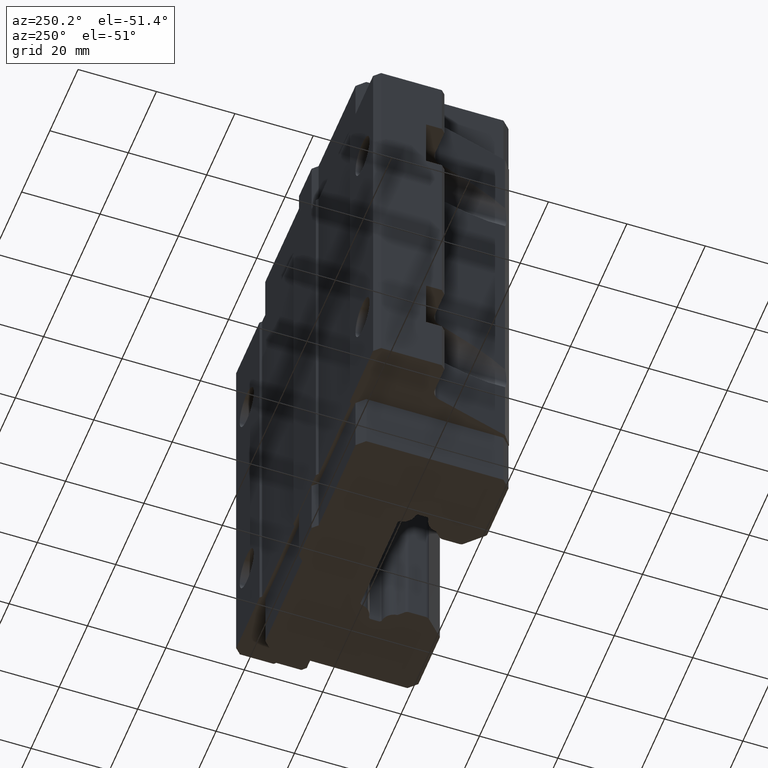
[diagram: clean part render]
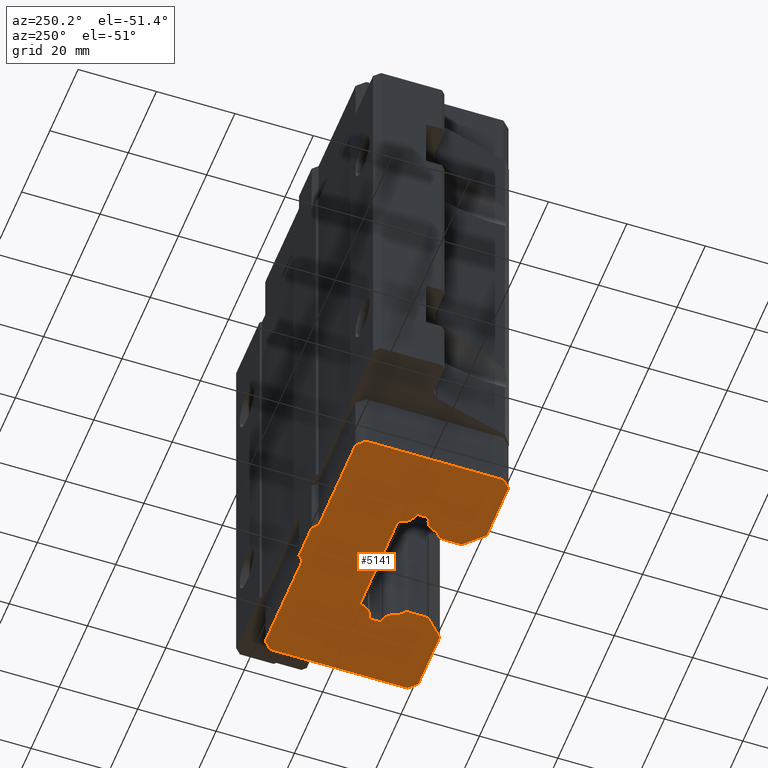
[diagram: same view with one face highlighted and labeled with its STEP entity id]
A machine part, auxiliary view. The second image highlights one B-rep face of the part: STEP entity #5141.
In plain terms, the highlighted planar face has unit normal (0, 0, 1).
Its self-contained STEP definition (entity closure, byte-faithful):
#320 = EDGE_CURVE ( 'NONE', #596, #598, #12018, .T. ) ;
#552 = VERTEX_POINT ( 'NONE', #12702 ) ;
#565 = EDGE_CURVE ( 'NONE', #552, #575, #12737, .T. ) ;
#575 = VERTEX_POINT ( 'NONE', #12768 ) ;
#596 = VERTEX_POINT ( 'NONE', #12884 ) ;
#598 = VERTEX_POINT ( 'NONE', #12883 ) ;
#692 = EDGE_CURVE ( 'NONE', #693, #698, #13094, .T. ) ;
#693 = VERTEX_POINT ( 'NONE', #13090 ) ;
#698 = VERTEX_POINT ( 'NONE', #13083 ) ;
#907 = VERTEX_POINT ( 'NONE', #13693 ) ;
#986 = EDGE_CURVE ( 'NONE', #5293, #907, #10647, .T. ) ;
#1277 = EDGE_CURVE ( 'NONE', #698, #5295, #5762, .T. ) ;
#1278 = VERTEX_POINT ( 'NONE', #5758 ) ;
#1305 = EDGE_CURVE ( 'NONE', #598, #552, #5807, .T. ) ;
#1318 = EDGE_CURVE ( 'NONE', #907, #596, #5859, .T. ) ;
#1327 = EDGE_CURVE ( 'NONE', #575, #1331, #5843, .T. ) ;
#1331 = VERTEX_POINT ( 'NONE', #5835 ) ;
#1345 = VERTEX_POINT ( 'NONE', #5882 ) ;
#1347 = EDGE_CURVE ( 'NONE', #1351, #1348, #5881, .T. ) ;
#1348 = VERTEX_POINT ( 'NONE', #5877 ) ;
#1351 = VERTEX_POINT ( 'NONE', #5875 ) ;
#1361 = EDGE_CURVE ( 'NONE', #1348, #1345, #5923, .T. ) ;
#1368 = EDGE_CURVE ( 'NONE', #1331, #1351, #5905, .T. ) ;
#1412 = ORIENTED_EDGE ( 'NONE', *, *, #1318, .F. ) ;
#1413 = ORIENTED_EDGE ( 'NONE', *, *, #14162, .F. ) ;
#1414 = ORIENTED_EDGE ( 'NONE', *, *, #5222, .F. ) ;
#1426 = ORIENTED_EDGE ( 'NONE', *, *, #14140, .F. ) ;
#1431 = ORIENTED_EDGE ( 'NONE', *, *, #14098, .F. ) ;
#1433 = ORIENTED_EDGE ( 'NONE', *, *, #5160, .F. ) ;
#1434 = ORIENTED_EDGE ( 'NONE', *, *, #2341, .F. ) ;
#1435 = ORIENTED_EDGE ( 'NONE', *, *, #5274, .F. ) ;
#1438 = ORIENTED_EDGE ( 'NONE', *, *, #2726, .F. ) ;
#1440 = ORIENTED_EDGE ( 'NONE', *, *, #14299, .F. ) ;
#1445 = ORIENTED_EDGE ( 'NONE', *, *, #14116, .F. ) ;
#1504 = VERTEX_POINT ( 'NONE', #6122 ) ;
#1507 = VERTEX_POINT ( 'NONE', #6112 ) ;
#1590 = ORIENTED_EDGE ( 'NONE', *, *, #14183, .F. ) ;
#1591 = EDGE_CURVE ( 'NONE', #1597, #13957, #6315, .T. ) ;
#1592 = ORIENTED_EDGE ( 'NONE', *, *, #1591, .F. ) ;
#1595 = ORIENTED_EDGE ( 'NONE', *, *, #692, .F. ) ;
#1596 = EDGE_CURVE ( 'NONE', #5096, #1597, #6375, .T. ) ;
#1597 = VERTEX_POINT ( 'NONE', #6371 ) ;
#1598 = ORIENTED_EDGE ( 'NONE', *, *, #5299, .F. ) ;
#1600 = ORIENTED_EDGE ( 'NONE', *, *, #986, .F. ) ;
#1607 = ORIENTED_EDGE ( 'NONE', *, *, #1277, .F. ) ;
#1608 = ORIENTED_EDGE ( 'NONE', *, *, #1596, .F. ) ;
#1617 = ORIENTED_EDGE ( 'NONE', *, *, #14186, .F. ) ;
#1618 = ORIENTED_EDGE ( 'NONE', *, *, #14027, .F. ) ;
#1620 = ORIENTED_EDGE ( 'NONE', *, *, #14034, .F. ) ;
#1621 = ORIENTED_EDGE ( 'NONE', *, *, #14005, .F. ) ;
#2283 = VERTEX_POINT ( 'NONE', #6739 ) ;
#2341 = EDGE_CURVE ( 'NONE', #2495, #2283, #6778, .T. ) ;
#2495 = VERTEX_POINT ( 'NONE', #6833 ) ;
#2726 = EDGE_CURVE ( 'NONE', #1504, #1507, #6860, .T. ) ;
#3545 = CARTESIAN_POINT ( 'NONE',  ( 13.62681920692313400, -0.3753978506824415800, -69.09999999999999400 ) ) ;
#3648 = CARTESIAN_POINT ( 'NONE',  ( -16.64140162820000100, -21.50000000000000000, -69.09999999999999400 ) ) ;
#3659 = DIRECTION ( 'NONE',  ( 0.7071067811865482400, -0.7071067811865469100, 0.0000000000000000000 ) ) ;
#3660 = VECTOR ( 'NONE', #3659, 999.9999999999998900 ) ;
#3661 = CARTESIAN_POINT ( 'NONE',  ( -34.04647986722999800, -19.45424285227000300, -69.09999999999999400 ) ) ;
#3662 = LINE ( 'NONE', #3661, #3660 ) ;
#3669 = CARTESIAN_POINT ( 'NONE',  ( -34.04647986722999800, -19.45424285227000300, -69.09999999999999400 ) ) ;
#3679 = CARTESIAN_POINT ( 'NONE',  ( -32.00072271949999700, -21.50000000000000000, -69.09999999999999400 ) ) ;
#3689 = DIRECTION ( 'NONE',  ( 1.000000000000000000, 0.0000000000000000000, 0.0000000000000000000 ) ) ;
#3690 = VECTOR ( 'NONE', #3689, 1000.000000000000000 ) ;
#3691 = CARTESIAN_POINT ( 'NONE',  ( 0.0000000000000000000, -21.50000000000000000, -69.09999999999999400 ) ) ;
#3692 = LINE ( 'NONE', #3691, #3690 ) ;
#3727 = CARTESIAN_POINT ( 'NONE',  ( 31.95352013277000200, 17.54575714773000100, -69.09999999999999400 ) ) ;
#3728 = DIRECTION ( 'NONE',  ( -0.7071067811865479100, 0.7071067811865472400, 0.0000000000000000000 ) ) ;
#3729 = VECTOR ( 'NONE', #3728, 999.9999999999998900 ) ;
#3730 = CARTESIAN_POINT ( 'NONE',  ( 33.95352013277000200, 15.54575714773000100, -69.09999999999999400 ) ) ;
#3731 = LINE ( 'NONE', #3730, #3729 ) ;
#3736 = CARTESIAN_POINT ( 'NONE',  ( -13.62594338087929200, -9.635477975359345100, -69.09999999999999400 ) ) ;
#3744 = DIRECTION ( 'NONE',  ( 0.7071067811865474600, 0.7071067811865474600, 0.0000000000000000000 ) ) ;
#3745 = VECTOR ( 'NONE', #3744, 1000.000000000000100 ) ;
#3746 = CARTESIAN_POINT ( 'NONE',  ( -16.64140162820000400, -21.50000000000000000, -69.09999999999999400 ) ) ;
#3747 = LINE ( 'NONE', #3746, #3745 ) ;
#3753 = CARTESIAN_POINT ( 'NONE',  ( 4.453520132772044200, 18.84575714773004800, -69.09999999999999400 ) ) ;
#3754 = DIRECTION ( 'NONE',  ( -1.000000000000000000, 0.0000000000000000000, 0.0000000000000000000 ) ) ;
#3755 = VECTOR ( 'NONE', #3754, 1000.000000000000000 ) ;
#3756 = CARTESIAN_POINT ( 'NONE',  ( 0.0000000000000000000, 17.54575714773000100, -69.09999999999999400 ) ) ;
#3757 = LINE ( 'NONE', #3756, #3755 ) ;
#3765 = CARTESIAN_POINT ( 'NONE',  ( 5.753520132771999600, 17.54575714773000100, -69.09999999999999400 ) ) ;
#3776 = DIRECTION ( 'NONE',  ( -0.7071067811865468000, 0.7071067811865483500, 0.0000000000000000000 ) ) ;
#3777 = VECTOR ( 'NONE', #3776, 999.9999999999998900 ) ;
#3778 = CARTESIAN_POINT ( 'NONE',  ( 5.753520132771999600, 17.54575714773000100, -69.09999999999999400 ) ) ;
#3779 = LINE ( 'NONE', #3778, #3777 ) ;
#3783 = LINE ( 'NONE', #3846, #3845 ) ;
#3798 = DIRECTION ( 'NONE',  ( -1.000000000000000000, 0.0000000000000000000, 0.0000000000000000000 ) ) ;
#3799 = VECTOR ( 'NONE', #3798, 1000.000000000000000 ) ;
#3800 = CARTESIAN_POINT ( 'NONE',  ( 0.0000000000000000000, 17.54575714773000100, -69.09999999999999400 ) ) ;
#3801 = LINE ( 'NONE', #3800, #3799 ) ;
#3803 = DIRECTION ( 'NONE',  ( -1.000000000000000000, 0.0000000000000000000, 0.0000000000000000000 ) ) ;
#3804 = VECTOR ( 'NONE', #3803, 1000.000000000000000 ) ;
#3805 = CARTESIAN_POINT ( 'NONE',  ( 0.0000000000000000000, 18.84575714773000100, -69.09999999999999400 ) ) ;
#3806 = LINE ( 'NONE', #3805, #3804 ) ;
#3807 = CARTESIAN_POINT ( 'NONE',  ( -4.546479867228000200, 18.84575714773000100, -69.09999999999999400 ) ) ;
#3814 = LINE ( 'NONE', #3879, #3878 ) ;
#3829 = DIRECTION ( 'NONE',  ( -0.7071067811865468000, -0.7071067811865483500, 0.0000000000000000000 ) ) ;
#3830 = VECTOR ( 'NONE', #3829, 999.9999999999998900 ) ;
#3831 = CARTESIAN_POINT ( 'NONE',  ( -4.546479867228000200, 18.84575714773000100, -69.09999999999999400 ) ) ;
#3832 = LINE ( 'NONE', #3831, #3830 ) ;
#3843 = CARTESIAN_POINT ( 'NONE',  ( -5.846479867227955700, 17.54575714772995500, -69.09999999999999400 ) ) ;
#3844 = DIRECTION ( 'NONE',  ( -0.7071067811862901100, 0.7071067811868049200, 0.0000000000000000000 ) ) ;
#3845 = VECTOR ( 'NONE', #3844, 1000.000000000000100 ) ;
#3846 = CARTESIAN_POINT ( 'NONE',  ( -12.25147186258000100, -11.00994949366000200, -69.09999999999999400 ) ) ;
#3848 = CARTESIAN_POINT ( 'NONE',  ( -16.86757359313000000, -9.868573593128999700, -69.09999999999999400 ) ) ;
#3849 = AXIS2_PLACEMENT_3D ( 'NONE', #3848, #3884, #3883 ) ;
#3850 = CIRCLE ( 'NONE', #3849, 3.249999999999999600 ) ;
#3851 = CARTESIAN_POINT ( 'NONE',  ( -32.04647986722999800, 17.54575714773000100, -69.09999999999999400 ) ) ;
#3852 = LINE ( 'NONE', #3851, #3892 ) ;
#3871 = CARTESIAN_POINT ( 'NONE',  ( -34.04647986722999800, 15.54575714772999900, -69.09999999999999400 ) ) ;
#3877 = DIRECTION ( 'NONE',  ( 0.0000000000000000000, 1.000000000000000000, 0.0000000000000000000 ) ) ;
#3878 = VECTOR ( 'NONE', #3877, 1000.000000000000000 ) ;
#3879 = CARTESIAN_POINT ( 'NONE',  ( -11.90000000000000000, 0.0000000000000000000, -69.09999999999999400 ) ) ;
#3883 = DIRECTION ( 'NONE',  ( 1.000000000000000000, 0.0000000000000000000, 0.0000000000000000000 ) ) ;
#3884 = DIRECTION ( 'NONE',  ( 0.0000000000000000000, 0.0000000000000000000, 1.000000000000000000 ) ) ;
#3891 = DIRECTION ( 'NONE',  ( -0.7071067811865479100, -0.7071067811865472400, 0.0000000000000000000 ) ) ;
#3892 = VECTOR ( 'NONE', #3891, 999.9999999999998900 ) ;
#3932 = CARTESIAN_POINT ( 'NONE',  ( -13.62681920692195400, -0.3753978506866541000, -69.09999999999999400 ) ) ;
#3948 = DIRECTION ( 'NONE',  ( 1.000000000000000000, 0.0000000000000000000, 0.0000000000000000000 ) ) ;
#3949 = DIRECTION ( 'NONE',  ( 0.0000000000000000000, 0.0000000000000000000, 1.000000000000000000 ) ) ;
#3950 = AXIS2_PLACEMENT_3D ( 'NONE', #3955, #3949, #3948 ) ;
#3951 = CIRCLE ( 'NONE', #3950, 3.249999999999999600 ) ;
#3955 = CARTESIAN_POINT ( 'NONE',  ( -16.86757359313000000, -0.1304264068712000000, -69.09999999999999400 ) ) ;
#3971 = DIRECTION ( 'NONE',  ( 0.0000000000000000000, -1.000000000000000000, 0.0000000000000000000 ) ) ;
#3972 = VECTOR ( 'NONE', #3971, 1000.000000000000000 ) ;
#3973 = CARTESIAN_POINT ( 'NONE',  ( -34.04647986722999800, 0.0000000000000000000, -69.09999999999999400 ) ) ;
#3978 = LINE ( 'NONE', #3973, #3972 ) ;
#3981 = DIRECTION ( 'NONE',  ( 1.000000000000000000, 0.0000000000000000000, 0.0000000000000000000 ) ) ;
#3982 = DIRECTION ( 'NONE',  ( 0.0000000000000000000, 0.0000000000000000000, 1.000000000000000000 ) ) ;
#3983 = CARTESIAN_POINT ( 'NONE',  ( 16.86757359313000000, -0.1304264068712000000, -69.09999999999999400 ) ) ;
#3984 = AXIS2_PLACEMENT_3D ( 'NONE', #3983, #3982, #3981 ) ;
#3985 = CIRCLE ( 'NONE', #3984, 3.249999999999999600 ) ;
#4147 = DIRECTION ( 'NONE',  ( 0.0000000000000000000, 1.000000000000000000, 0.0000000000000000000 ) ) ;
#4148 = VECTOR ( 'NONE', #4147, 1000.000000000000000 ) ;
#4149 = CARTESIAN_POINT ( 'NONE',  ( -17.00000000000000000, 0.0000000000000000000, -69.09999999999999400 ) ) ;
#4150 = LINE ( 'NONE', #4149, #4148 ) ;
#5096 = VERTEX_POINT ( 'NONE', #7257 ) ;
#5116 = EDGE_LOOP ( 'NONE', ( #5123, #5117, #5120, #5122, #5149, #5147, #5155, #5152, #5150, #5151, #5159, #5132, #5153, #5140, #1412, #1600, #1598, #1607, #1595, #1590, #1592, #1608, #1433, #1413, #1435, #1440, #1414, #1426, #1431, #1438, #1445, #1434, #1620, #1618, #1621, #1617 ) ) ;
#5117 = ORIENTED_EDGE ( 'NONE', *, *, #14085, .F. ) ;
#5120 = ORIENTED_EDGE ( 'NONE', *, *, #14108, .F. ) ;
#5122 = ORIENTED_EDGE ( 'NONE', *, *, #14083, .F. ) ;
#5123 = ORIENTED_EDGE ( 'NONE', *, *, #14136, .F. ) ;
#5132 = ORIENTED_EDGE ( 'NONE', *, *, #565, .F. ) ;
#5140 = ORIENTED_EDGE ( 'NONE', *, *, #320, .F. ) ;
#5141 = ADVANCED_FACE ( 'NONE', ( #7295 ), #7294, .F. ) ;
#5147 = ORIENTED_EDGE ( 'NONE', *, *, #14075, .F. ) ;
#5149 = ORIENTED_EDGE ( 'NONE', *, *, #14060, .F. ) ;
#5150 = ORIENTED_EDGE ( 'NONE', *, *, #1347, .F. ) ;
#5151 = ORIENTED_EDGE ( 'NONE', *, *, #1368, .F. ) ;
#5152 = ORIENTED_EDGE ( 'NONE', *, *, #1361, .F. ) ;
#5153 = ORIENTED_EDGE ( 'NONE', *, *, #1305, .F. ) ;
#5155 = ORIENTED_EDGE ( 'NONE', *, *, #14047, .F. ) ;
#5159 = ORIENTED_EDGE ( 'NONE', *, *, #1327, .F. ) ;
#5160 = EDGE_CURVE ( 'NONE', #14167, #5096, #7343, .T. ) ;
#5205 = VERTEX_POINT ( 'NONE', #7400 ) ;
#5209 = VERTEX_POINT ( 'NONE', #7391 ) ;
#5222 = EDGE_CURVE ( 'NONE', #5209, #5205, #7431, .T. ) ;
#5260 = VERTEX_POINT ( 'NONE', #7518 ) ;
#5268 = VERTEX_POINT ( 'NONE', #7506 ) ;
#5274 = EDGE_CURVE ( 'NONE', #5268, #5260, #7504, .T. ) ;
#5293 = VERTEX_POINT ( 'NONE', #7525 ) ;
#5295 = VERTEX_POINT ( 'NONE', #7589 ) ;
#5299 = EDGE_CURVE ( 'NONE', #5295, #5293, #7582, .T. ) ;
#5758 = CARTESIAN_POINT ( 'NONE',  ( -32.04647986722999800, 17.54575714773000100, -69.09999999999999400 ) ) ;
#5759 = DIRECTION ( 'NONE',  ( 0.0000000000000000000, -1.000000000000000000, 0.0000000000000000000 ) ) ;
#5760 = VECTOR ( 'NONE', #5759, 1000.000000000000000 ) ;
#5761 = CARTESIAN_POINT ( 'NONE',  ( 17.00000000000000000, 0.0000000000000000000, -69.09999999999999400 ) ) ;
#5762 = LINE ( 'NONE', #5761, #5760 ) ;
#5804 = DIRECTION ( 'NONE',  ( 0.0000000000000000000, -1.000000000000000000, 0.0000000000000000000 ) ) ;
#5805 = VECTOR ( 'NONE', #5804, 1000.000000000000000 ) ;
#5806 = CARTESIAN_POINT ( 'NONE',  ( 11.90000000000000000, 0.0000000000000000000, -69.09999999999999400 ) ) ;
#5807 = LINE ( 'NONE', #5806, #5805 ) ;
#5835 = CARTESIAN_POINT ( 'NONE',  ( 16.64140162820000100, -21.50000000000000000, -69.09999999999999400 ) ) ;
#5840 = DIRECTION ( 'NONE',  ( 0.7071067811865474600, -0.7071067811865474600, 0.0000000000000000000 ) ) ;
#5841 = VECTOR ( 'NONE', #5840, 1000.000000000000100 ) ;
#5842 = CARTESIAN_POINT ( 'NONE',  ( 12.25147186258000100, -17.11007023438000000, -69.09999999999999400 ) ) ;
#5843 = LINE ( 'NONE', #5842, #5841 ) ;
#5856 = DIRECTION ( 'NONE',  ( -0.7071067811862901100, -0.7071067811868049200, 0.0000000000000000000 ) ) ;
#5857 = VECTOR ( 'NONE', #5856, 1000.000000000000100 ) ;
#5858 = CARTESIAN_POINT ( 'NONE',  ( 13.62594338088000100, -9.635477975359000500, -69.09999999999999400 ) ) ;
#5859 = LINE ( 'NONE', #5858, #5857 ) ;
#5875 = CARTESIAN_POINT ( 'NONE',  ( 31.90776298504000200, -21.50000000000000000, -69.09999999999999400 ) ) ;
#5877 = CARTESIAN_POINT ( 'NONE',  ( 33.95352013277000200, -19.45424285227000300, -69.09999999999999400 ) ) ;
#5878 = DIRECTION ( 'NONE',  ( 0.7071067811865482400, 0.7071067811865469100, 0.0000000000000000000 ) ) ;
#5879 = VECTOR ( 'NONE', #5878, 999.9999999999998900 ) ;
#5880 = CARTESIAN_POINT ( 'NONE',  ( 31.90776298504000200, -21.50000000000000000, -69.09999999999999400 ) ) ;
#5881 = LINE ( 'NONE', #5880, #5879 ) ;
#5882 = CARTESIAN_POINT ( 'NONE',  ( 33.95352013277000200, 15.54575714773000300, -69.09999999999999400 ) ) ;
#5902 = DIRECTION ( 'NONE',  ( 1.000000000000000000, 0.0000000000000000000, 0.0000000000000000000 ) ) ;
#5903 = VECTOR ( 'NONE', #5902, 1000.000000000000000 ) ;
#5904 = CARTESIAN_POINT ( 'NONE',  ( 0.0000000000000000000, -21.50000000000000000, -69.09999999999999400 ) ) ;
#5905 = LINE ( 'NONE', #5904, #5903 ) ;
#5920 = DIRECTION ( 'NONE',  ( 0.0000000000000000000, 1.000000000000000000, 0.0000000000000000000 ) ) ;
#5921 = VECTOR ( 'NONE', #5920, 1000.000000000000000 ) ;
#5922 = CARTESIAN_POINT ( 'NONE',  ( 33.95352013277000200, 0.0000000000000000000, -69.09999999999999400 ) ) ;
#5923 = LINE ( 'NONE', #5922, #5921 ) ;
#6112 = CARTESIAN_POINT ( 'NONE',  ( -12.25147186257984600, -11.00994949366015500, -69.09999999999999400 ) ) ;
#6122 = CARTESIAN_POINT ( 'NONE',  ( -11.90000000000023000, -11.85847763108500000, -69.09999999999999400 ) ) ;
#6308 = DIRECTION ( 'NONE',  ( 0.7071067811871975000, -0.7071067811858974300, 0.0000000000000000000 ) ) ;
#6310 = VECTOR ( 'NONE', #6308, 1000.000000000000100 ) ;
#6314 = CARTESIAN_POINT ( 'NONE',  ( 13.25142135624000000, 0.0000000000000000000, -69.09999999999999400 ) ) ;
#6315 = LINE ( 'NONE', #6314, #6310 ) ;
#6371 = CARTESIAN_POINT ( 'NONE',  ( 13.25142135624000200, -4.878909776183774000E-016, -69.09999999999999400 ) ) ;
#6372 = DIRECTION ( 'NONE',  ( 1.000000000000000000, 0.0000000000000000000, 0.0000000000000000000 ) ) ;
#6373 = VECTOR ( 'NONE', #6372, 1000.000000000000000 ) ;
#6374 = CARTESIAN_POINT ( 'NONE',  ( -13.25142135624000000, 0.0000000000000000000, -69.09999999999999400 ) ) ;
#6375 = LINE ( 'NONE', #6374, #6373 ) ;
#6739 = CARTESIAN_POINT ( 'NONE',  ( -11.90000000000000000, -16.26154209695000200, -69.09999999999999400 ) ) ;
#6774 = DIRECTION ( 'NONE',  ( 1.000000000000000000, 0.0000000000000000000, 0.0000000000000000000 ) ) ;
#6775 = DIRECTION ( 'NONE',  ( 0.0000000000000000000, 0.0000000000000000000, 1.000000000000000000 ) ) ;
#6776 = CARTESIAN_POINT ( 'NONE',  ( -13.10000000000000100, -16.26154209695000200, -69.09999999999999400 ) ) ;
#6777 = AXIS2_PLACEMENT_3D ( 'NONE', #6776, #6775, #6774 ) ;
#6778 = CIRCLE ( 'NONE', #6777, 1.199999999999999700 ) ;
#6833 = CARTESIAN_POINT ( 'NONE',  ( -12.25147186257734500, -17.11007023437765500, -69.09999999999999400 ) ) ;
#6855 = DIRECTION ( 'NONE',  ( 1.000000000000000000, 0.0000000000000000000, 0.0000000000000000000 ) ) ;
#6857 = DIRECTION ( 'NONE',  ( 0.0000000000000000000, 0.0000000000000000000, 1.000000000000000000 ) ) ;
#6858 = CARTESIAN_POINT ( 'NONE',  ( -13.10000000000000100, -11.85847763108000000, -69.09999999999999400 ) ) ;
#6859 = AXIS2_PLACEMENT_3D ( 'NONE', #6858, #6857, #6855 ) ;
#6860 = CIRCLE ( 'NONE', #6859, 1.199999999999999700 ) ;
#7257 = CARTESIAN_POINT ( 'NONE',  ( -13.25142135623960400, 3.614007241618347900E-017, -69.09999999999999400 ) ) ;
#7290 = DIRECTION ( 'NONE',  ( 1.000000000000000000, 0.0000000000000000000, 0.0000000000000000000 ) ) ;
#7291 = DIRECTION ( 'NONE',  ( 0.0000000000000000000, 0.0000000000000000000, 1.000000000000000000 ) ) ;
#7292 = CARTESIAN_POINT ( 'NONE',  ( 0.0000000000000000000, 0.0000000000000000000, -69.09999999999999400 ) ) ;
#7293 = AXIS2_PLACEMENT_3D ( 'NONE', #7292, #7291, #7290 ) ;
#7294 = PLANE ( 'NONE',  #7293 ) ;
#7295 = FACE_OUTER_BOUND ( 'NONE', #5116, .T. ) ;
#7340 = DIRECTION ( 'NONE',  ( 0.7071067811821210000, 0.7071067811909741400, 0.0000000000000000000 ) ) ;
#7341 = VECTOR ( 'NONE', #7340, 1000.000000000000100 ) ;
#7342 = CARTESIAN_POINT ( 'NONE',  ( -13.62681920692000000, -0.3753978506847000000, -69.09999999999999400 ) ) ;
#7343 = LINE ( 'NONE', #7342, #7341 ) ;
#7391 = CARTESIAN_POINT ( 'NONE',  ( -16.63447797535984300, -6.626943380878325100, -69.09999999999999400 ) ) ;
#7400 = CARTESIAN_POINT ( 'NONE',  ( -17.00000000000000700, -6.261421356238008300, -69.09999999999999400 ) ) ;
#7428 = DIRECTION ( 'NONE',  ( -0.7071067811865975300, 0.7071067811864976100, 0.0000000000000000000 ) ) ;
#7429 = VECTOR ( 'NONE', #7428, 1000.000000000000100 ) ;
#7430 = CARTESIAN_POINT ( 'NONE',  ( -16.63447797535999900, -6.626943380878000100, -69.09999999999999400 ) ) ;
#7431 = LINE ( 'NONE', #7430, #7429 ) ;
#7501 = DIRECTION ( 'NONE',  ( 0.7071067811865474600, 0.7071067811865474600, 0.0000000000000000000 ) ) ;
#7502 = VECTOR ( 'NONE', #7501, 1000.000000000000100 ) ;
#7503 = CARTESIAN_POINT ( 'NONE',  ( -17.00000000000000000, -3.748578643763000000, -69.09999999999999400 ) ) ;
#7504 = LINE ( 'NONE', #7503, #7502 ) ;
#7506 = CARTESIAN_POINT ( 'NONE',  ( -17.00000000000017100, -3.748578643763000000, -69.09999999999999400 ) ) ;
#7518 = CARTESIAN_POINT ( 'NONE',  ( -16.62260214931225000, -3.371180793077265000, -69.09999999999999400 ) ) ;
#7525 = CARTESIAN_POINT ( 'NONE',  ( 16.63447797535927500, -6.626943380878366000, -69.09999999999999400 ) ) ;
#7579 = DIRECTION ( 'NONE',  ( -0.7071067811865975300, -0.7071067811864976100, 0.0000000000000000000 ) ) ;
#7580 = VECTOR ( 'NONE', #7579, 1000.000000000000100 ) ;
#7581 = CARTESIAN_POINT ( 'NONE',  ( 17.00000000000000000, -6.261421356237000200, -69.09999999999999400 ) ) ;
#7582 = LINE ( 'NONE', #7581, #7580 ) ;
#7589 = CARTESIAN_POINT ( 'NONE',  ( 17.00000000000000000, -6.261421356237001100, -69.09999999999999400 ) ) ;
#10644 = DIRECTION ( 'NONE',  ( 1.000000000000000000, 0.0000000000000000000, 0.0000000000000000000 ) ) ;
#10645 = DIRECTION ( 'NONE',  ( 0.0000000000000000000, 0.0000000000000000000, 1.000000000000000000 ) ) ;
#10646 = AXIS2_PLACEMENT_3D ( 'NONE', #10653, #10645, #10644 ) ;
#10647 = CIRCLE ( 'NONE', #10646, 3.249999999999999600 ) ;
#10653 = CARTESIAN_POINT ( 'NONE',  ( 16.86757359313000000, -9.868573593128999700, -69.09999999999999400 ) ) ;
#12014 = DIRECTION ( 'NONE',  ( 1.000000000000000000, 0.0000000000000000000, 0.0000000000000000000 ) ) ;
#12015 = DIRECTION ( 'NONE',  ( 0.0000000000000000000, 0.0000000000000000000, 1.000000000000000000 ) ) ;
#12016 = CARTESIAN_POINT ( 'NONE',  ( 13.10000000000000100, -11.85847763108000000, -69.09999999999999400 ) ) ;
#12017 = AXIS2_PLACEMENT_3D ( 'NONE', #12016, #12015, #12014 ) ;
#12018 = CIRCLE ( 'NONE', #12017, 1.199999999999999700 ) ;
#12702 = CARTESIAN_POINT ( 'NONE',  ( 11.90000000000022600, -16.26154209695000200, -69.09999999999999400 ) ) ;
#12733 = DIRECTION ( 'NONE',  ( 1.000000000000000000, 0.0000000000000000000, 0.0000000000000000000 ) ) ;
#12734 = DIRECTION ( 'NONE',  ( 0.0000000000000000000, 0.0000000000000000000, 1.000000000000000000 ) ) ;
#12735 = CARTESIAN_POINT ( 'NONE',  ( 13.10000000000000100, -16.26154209695000200, -69.09999999999999400 ) ) ;
#12736 = AXIS2_PLACEMENT_3D ( 'NONE', #12735, #12734, #12733 ) ;
#12737 = CIRCLE ( 'NONE', #12736, 1.199999999999999700 ) ;
#12768 = CARTESIAN_POINT ( 'NONE',  ( 12.25147186258000100, -17.11007023437500200, -69.09999999999999400 ) ) ;
#12883 = CARTESIAN_POINT ( 'NONE',  ( 11.90000000000000000, -11.85847763108500000, -69.09999999999999400 ) ) ;
#12884 = CARTESIAN_POINT ( 'NONE',  ( 12.25147186257954800, -11.00994949365985700, -69.09999999999999400 ) ) ;
#13083 = CARTESIAN_POINT ( 'NONE',  ( 16.99999999999980100, -3.748578643756200500, -69.09999999999999400 ) ) ;
#13090 = CARTESIAN_POINT ( 'NONE',  ( 16.62260214931992100, -3.371180793077845000, -69.09999999999999400 ) ) ;
#13091 = DIRECTION ( 'NONE',  ( 0.7071067811872975300, -0.7071067811857975100, 0.0000000000000000000 ) ) ;
#13092 = VECTOR ( 'NONE', #13091, 1000.000000000000000 ) ;
#13093 = CARTESIAN_POINT ( 'NONE',  ( 16.62260214931999900, -3.371180793078000000, -69.09999999999999400 ) ) ;
#13094 = LINE ( 'NONE', #13093, #13092 ) ;
#13693 = CARTESIAN_POINT ( 'NONE',  ( 13.62594338087963100, -9.635477975359370000, -69.09999999999999400 ) ) ;
#13957 = VERTEX_POINT ( 'NONE', #3545 ) ;
#13995 = VERTEX_POINT ( 'NONE', #3679 ) ;
#14001 = VERTEX_POINT ( 'NONE', #3669 ) ;
#14005 = EDGE_CURVE ( 'NONE', #14001, #13995, #3662, .T. ) ;
#14018 = VERTEX_POINT ( 'NONE', #3648 ) ;
#14027 = EDGE_CURVE ( 'NONE', #13995, #14018, #3692, .T. ) ;
#14034 = EDGE_CURVE ( 'NONE', #14018, #2495, #3747, .T. ) ;
#14042 = VERTEX_POINT ( 'NONE', #3736 ) ;
#14047 = EDGE_CURVE ( 'NONE', #1345, #14048, #3731, .T. ) ;
#14048 = VERTEX_POINT ( 'NONE', #3727 ) ;
#14060 = EDGE_CURVE ( 'NONE', #14070, #14078, #3779, .T. ) ;
#14070 = VERTEX_POINT ( 'NONE', #3765 ) ;
#14075 = EDGE_CURVE ( 'NONE', #14048, #14070, #3757, .T. ) ;
#14078 = VERTEX_POINT ( 'NONE', #3753 ) ;
#14082 = VERTEX_POINT ( 'NONE', #3807 ) ;
#14083 = EDGE_CURVE ( 'NONE', #14078, #14082, #3806, .T. ) ;
#14085 = EDGE_CURVE ( 'NONE', #14099, #1278, #3801, .T. ) ;
#14098 = EDGE_CURVE ( 'NONE', #1507, #14042, #3783, .T. ) ;
#14099 = VERTEX_POINT ( 'NONE', #3843 ) ;
#14108 = EDGE_CURVE ( 'NONE', #14082, #14099, #3832, .T. ) ;
#14116 = EDGE_CURVE ( 'NONE', #2283, #1504, #3814, .T. ) ;
#14123 = VERTEX_POINT ( 'NONE', #3871 ) ;
#14136 = EDGE_CURVE ( 'NONE', #1278, #14123, #3852, .T. ) ;
#14140 = EDGE_CURVE ( 'NONE', #14042, #5209, #3850, .T. ) ;
#14162 = EDGE_CURVE ( 'NONE', #5260, #14167, #3951, .T. ) ;
#14167 = VERTEX_POINT ( 'NONE', #3932 ) ;
#14183 = EDGE_CURVE ( 'NONE', #13957, #693, #3985, .T. ) ;
#14186 = EDGE_CURVE ( 'NONE', #14123, #14001, #3978, .T. ) ;
#14299 = EDGE_CURVE ( 'NONE', #5205, #5268, #4150, .T. ) ;